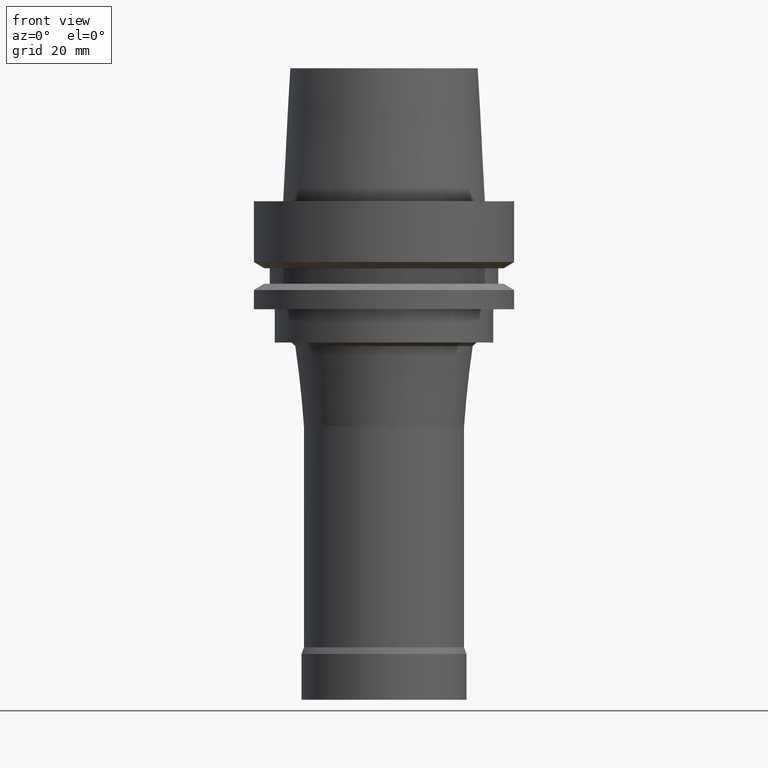
[diagram: clean part render]
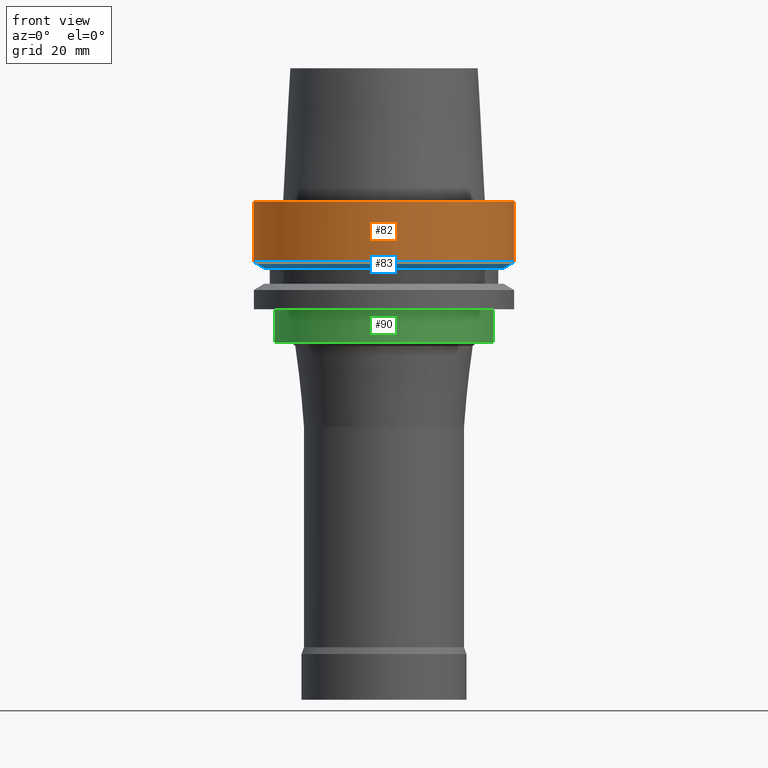
[diagram: same view with three faces highlighted in distinct colors, each labeled with its STEP entity id]
A machine part, front view with three faces highlighted in distinct colors.
Their STEP definitions:

[orange] entity #82 — the highlighted cylindrical surface (bore or boss wall) has radius 31.5 mm, axis along (-0, -0, 1).
#82=ADVANCED_FACE('',(#116,#117),#118,.T.);
#116=FACE_BOUND('',#174,.T.);
#117=FACE_BOUND('',#175,.T.);
#118=CYLINDRICAL_SURFACE('',#176,31.5);
#174=EDGE_LOOP('',(#246));
#175=EDGE_LOOP('',(#247));
#176=AXIS2_PLACEMENT_3D('',#248,#249,#250);
#246=ORIENTED_EDGE('',*,*,#318,.F.);
#247=ORIENTED_EDGE('',*,*,#316,.T.);
#248=CARTESIAN_POINT('',(4.47684973986342E-016,8.95369947972684E-016,-7.311250465));
#249=DIRECTION('',(-6.12323399573677E-017,-1.22464679914735E-016,1.0));
#250=DIRECTION('',(-1.23259516440783E-032,1.0,1.22464679914735E-016));
#316=EDGE_CURVE('',#341,#341,#342,.T.);
#318=EDGE_CURVE('',#345,#345,#346,.T.);
#341=VERTEX_POINT('',#379);
#342=CIRCLE('',#380,31.5);
#345=VERTEX_POINT('',#383);
#346=CIRCLE('',#384,31.5);
#379=CARTESIAN_POINT('',(-3.8214424279273E-031,31.5,3.75763741731416E-015));
#380=AXIS2_PLACEMENT_3D('',#423,#424,#425);
#383=CARTESIAN_POINT('',(8.95369947972684E-016,31.5,-14.62250093));
#384=AXIS2_PLACEMENT_3D('',#429,#430,#431);
#423=CARTESIAN_POINT('',(6.12323399573677E-033,1.22464679914735E-032,-1.0E-016));
#424=DIRECTION('',(6.12323399573677E-017,1.22464679914735E-016,-1.0));
#425=DIRECTION('',(-1.23259516440783E-032,1.0,1.22464679914735E-016));
#429=CARTESIAN_POINT('',(8.95369947972685E-016,1.79073989594537E-015,-14.62250093));
#430=DIRECTION('',(6.12323399573677E-017,1.22464679914735E-016,-1.0));
#431=DIRECTION('',(-1.23259516440783E-032,1.0,1.22464679914735E-016));

[blue] entity #83 — the highlighted conical surface has half-angle 60 deg.
#83=ADVANCED_FACE('',(#119,#120),#121,.T.);
#119=FACE_BOUND('',#177,.T.);
#120=FACE_BOUND('',#178,.T.);
#121=CONICAL_SURFACE('',#179,30.19879763,1.04719755326565);
#177=EDGE_LOOP('',(#251));
#178=EDGE_LOOP('',(#252));
#179=AXIS2_PLACEMENT_3D('',#253,#254,#255);
#251=ORIENTED_EDGE('',*,*,#319,.F.);
#252=ORIENTED_EDGE('',*,*,#318,.T.);
#253=CARTESIAN_POINT('',(9.41370714892619E-016,1.88274142978524E-015,-15.373750465));
#254=DIRECTION('',(-6.12323399573677E-017,-1.22464679914735E-016,1.0));
#255=DIRECTION('',(-1.23259516440783E-032,1.0,1.22464679914735E-016));
#318=EDGE_CURVE('',#345,#345,#346,.T.);
#319=EDGE_CURVE('',#347,#347,#348,.T.);
#345=VERTEX_POINT('',#383);
#346=CIRCLE('',#384,31.5);
#347=VERTEX_POINT('',#385);
#348=CIRCLE('',#386,28.89759526);
#383=CARTESIAN_POINT('',(8.95369947972684E-016,31.5,-14.62250093));
#384=AXIS2_PLACEMENT_3D('',#429,#430,#431);
#385=CARTESIAN_POINT('',(9.87371481812553E-016,28.89759526,-16.125));
#386=AXIS2_PLACEMENT_3D('',#432,#433,#434);
#429=CARTESIAN_POINT('',(8.95369947972685E-016,1.79073989594537E-015,-14.62250093));
#430=DIRECTION('',(6.12323399573677E-017,1.22464679914735E-016,-1.0));
#431=DIRECTION('',(-1.23259516440783E-032,1.0,1.22464679914735E-016));
#432=CARTESIAN_POINT('',(9.87371481812554E-016,1.97474296362511E-015,-16.125));
#433=DIRECTION('',(6.12323399573677E-017,1.22464679914735E-016,-1.0));
#434=DIRECTION('',(-1.23259516440783E-032,1.0,1.22464679914735E-016));

[green] entity #90 — the highlighted cylindrical surface (bore or boss wall) has radius 26.3 mm, axis along (-0, -0, 1).
#90=ADVANCED_FACE('',(#140,#141),#142,.T.);
#140=FACE_BOUND('',#198,.T.);
#141=FACE_BOUND('',#199,.T.);
#142=CYLINDRICAL_SURFACE('',#200,26.3);
#198=EDGE_LOOP('',(#286));
#199=EDGE_LOOP('',(#287));
#200=AXIS2_PLACEMENT_3D('',#288,#289,#290);
#286=ORIENTED_EDGE('',*,*,#326,.F.);
#287=ORIENTED_EDGE('',*,*,#325,.T.);
#288=CARTESIAN_POINT('',(1.83697019872103E-015,3.67394039744206E-015,-30.0));
#289=DIRECTION('',(-6.12323399573677E-017,-1.22464679914735E-016,1.0));
#290=DIRECTION('',(-1.23259516440783E-032,1.0,1.22464679914735E-016));
#325=EDGE_CURVE('',#359,#359,#360,.T.);
#326=EDGE_CURVE('',#361,#361,#362,.T.);
#359=VERTEX_POINT('',#397);
#360=CIRCLE('',#398,26.3);
#361=VERTEX_POINT('',#399);
#362=CIRCLE('',#400,26.3);
#397=CARTESIAN_POINT('',(1.59204083889156E-015,26.3,-26.0));
#398=AXIS2_PLACEMENT_3D('',#450,#451,#452);
#399=CARTESIAN_POINT('',(2.0818995585505E-015,26.3,-34.0));
#400=AXIS2_PLACEMENT_3D('',#453,#454,#455);
#450=CARTESIAN_POINT('',(1.59204083889156E-015,3.18408167778312E-015,-26.0));
#451=DIRECTION('',(6.12323399573677E-017,1.22464679914735E-016,-1.0));
#452=DIRECTION('',(-1.23259516440783E-032,1.0,1.22464679914735E-016));
#453=CARTESIAN_POINT('',(2.0818995585505E-015,4.163799117101E-015,-34.0));
#454=DIRECTION('',(6.12323399573677E-017,1.22464679914735E-016,-1.0));
#455=DIRECTION('',(-1.23259516440783E-032,1.0,1.22464679914735E-016));